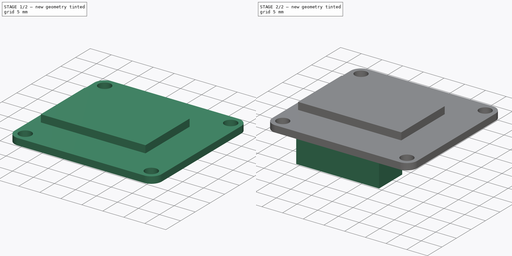
[diagram: build sequence overview — one tinted view per stage of 2, left to right]
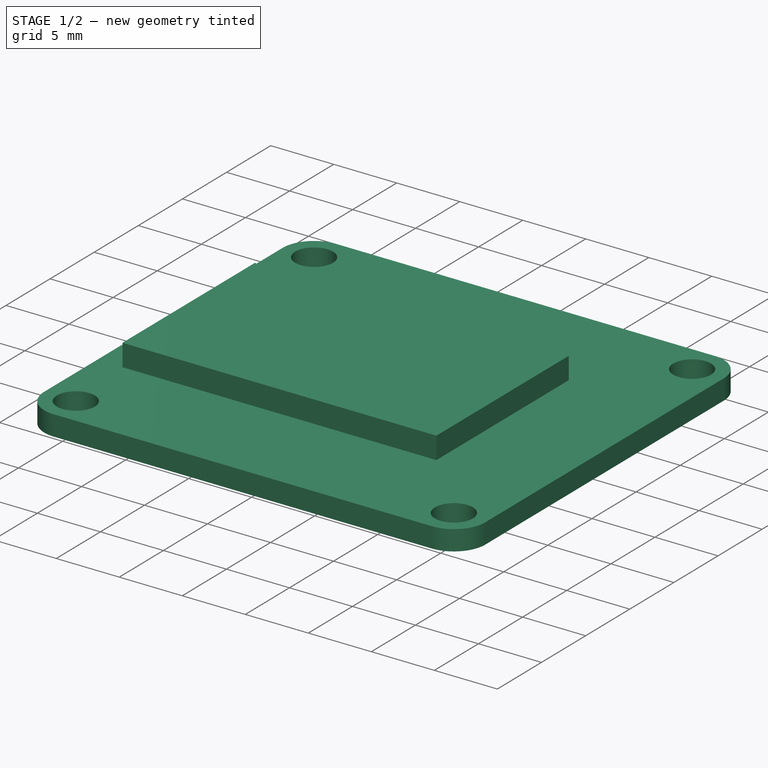
[diagram: stage 1 of 2 — iso view after this stage's code; geometry added in this stage tinted green]
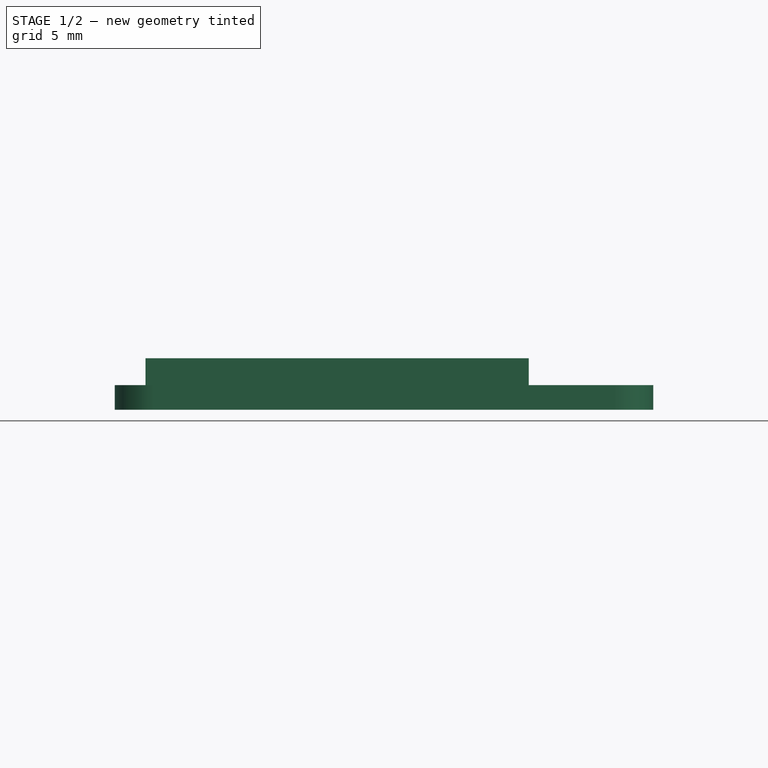
[diagram: stage 1 of 2 — front view after this stage's code; geometry added in this stage tinted green]
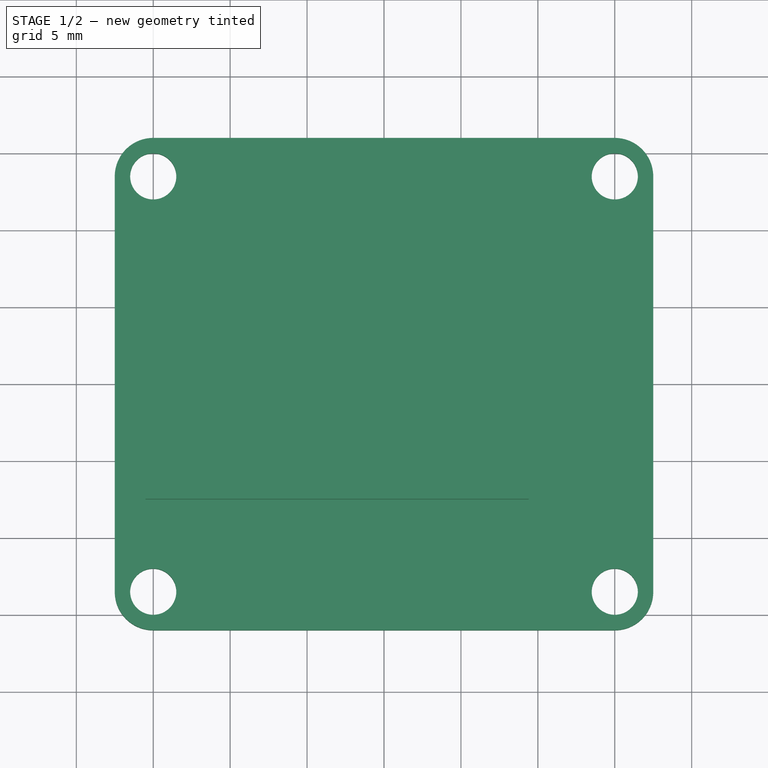
[diagram: stage 1 of 2 — top view after this stage's code; geometry added in this stage tinted green]
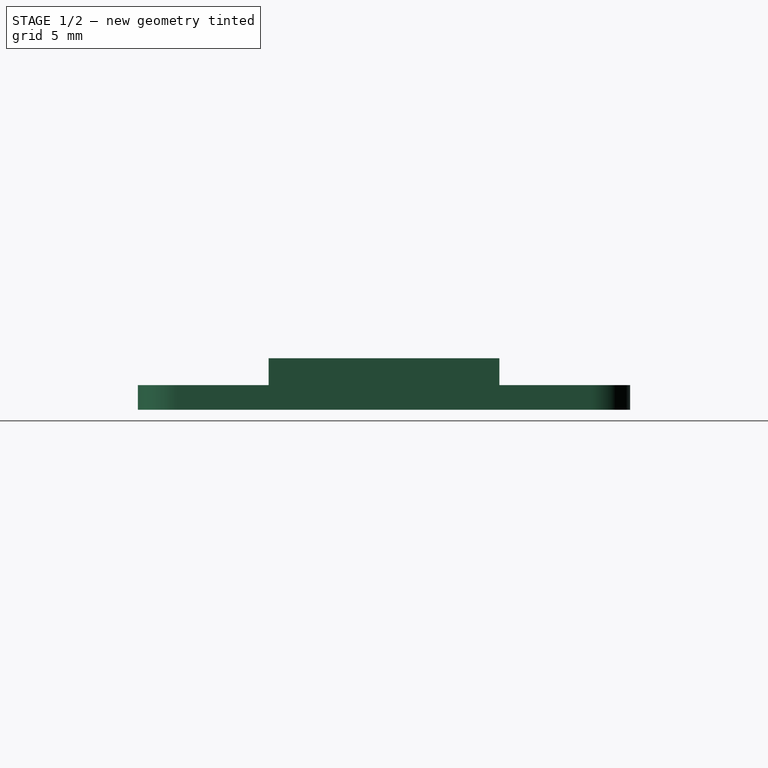
[diagram: stage 1 of 2 — right view after this stage's code; geometry added in this stage tinted green]
FCSTD DOCUMENT  (FreeCAD 0.19R24291 (Git))
Label: LCD114
License: All rights reserved
LicenseURL: http://en.wikipedia.org/wiki/All_rights_reserved
objects: Sketcher::SketchObject×3, PartDesign::Pad×3, PartDesign::CoordinateSystem×2, PartDesign::Body×1
note: 12 computed .brp shape members not serialized (recipe doc carries the construction recipe); baked Part::Feature solids carry a one-line shape summary decoded from their .brp
EXTERNAL_REF file=data.FCStd obj=Spreadsheet

FEATURE [PartDesign::CoordinateSystem] LCS_0
  AttacherType = Attacher::AttachEngine3D
  MapMode = 2
  Support = -> [X_Axis]
FEATURE [Sketcher::SketchObject] Sketch  label="Sketch_PCB"
  FullyConstrained = true
  MapMode = 5
  Support = -> [XY_Plane]
  expr: Constraints[44] = data#<<data>>.LCDLength
  expr: Constraints[43] = data#<<data>>.LCDWidth
  expr: Constraints[42] = data#<<data>>.LCDMountOffset
  sketch-geometry (16):
    g0: ArcOfCircle CenterX=-15 CenterY=13.5 CenterZ=0 NormalX=0 NormalY=0 NormalZ=1 AngleXU=0 Radius=2.5 StartAngle=1.5708 EndAngle=3.14159
    g1: ArcOfCircle CenterX=15 CenterY=13.5 CenterZ=0 NormalX=0 NormalY=0 NormalZ=1 AngleXU=0 Radius=2.5 StartAngle=0 EndAngle=1.5708
    g2: ArcOfCircle CenterX=15 CenterY=-13.5 CenterZ=0 NormalX=0 NormalY=0 NormalZ=1 AngleXU=0 Radius=2.5 StartAngle=4.71239 EndAngle=6.28319
    g3: ArcOfCircle CenterX=-15 CenterY=-13.5 CenterZ=0 NormalX=0 NormalY=0 NormalZ=1 AngleXU=0 Radius=2.5 StartAngle=3.14159 EndAngle=4.71239
    g4: LineSegment StartX=-17.5 StartY=13.5 StartZ=0 EndX=-17.5 EndY=-13.5 EndZ=0
    g5: LineSegment StartX=17.5 StartY=13.5 StartZ=0 EndX=17.5 EndY=-13.5 EndZ=0
    g6: LineSegment StartX=-15 StartY=16 StartZ=0 EndX=15 EndY=16 EndZ=0
    g7: LineSegment StartX=-15 StartY=-16 StartZ=0 EndX=15 EndY=-16 EndZ=0
    g8: LineSegment StartX=-17.5 StartY=13.5 StartZ=0 EndX=-17.5 EndY=16 EndZ=0
    g9: LineSegment StartX=-15 StartY=16 StartZ=0 EndX=-17.5 EndY=16 EndZ=0
    g10: LineSegment StartX=17.5 StartY=-13.5 StartZ=0 EndX=17.5 EndY=-16 EndZ=0
    g11: LineSegment StartX=15 StartY=-16 StartZ=0 EndX=17.5 EndY=-16 EndZ=0
    g12: Circle CenterX=-15 CenterY=13.5 CenterZ=0 NormalX=0 NormalY=0 NormalZ=1 AngleXU=0 Radius=1.5
    g13: Circle CenterX=15 CenterY=13.5 CenterZ=0 NormalX=0 NormalY=0 NormalZ=1 AngleXU=0 Radius=1.5
    g14: Circle CenterX=15 CenterY=-13.5 CenterZ=0 NormalX=0 NormalY=0 NormalZ=1 AngleXU=0 Radius=1.5
    g15: Circle CenterX=-15 CenterY=-13.5 CenterZ=0 NormalX=0 NormalY=0 NormalZ=1 AngleXU=0 Radius=1.5
  constraints (45):
    c: Vertical(g0,g0)
    c: Vertical(g3,g3)
    c: Vertical(g1,g1)
    c: Vertical(g2,g2)
    c: Horizontal(g0,g0)
    c: Horizontal(g1,g1)
    c: Horizontal(g2,g2)
    c: Horizontal(g3,g3)
    c: Equal(g0,g1)
    c: Equal(g0,g2)
    c: Equal(g0,g3)
    c: Coincident(g4,g0)
    c: Coincident(g5,g1)
    c: Coincident(g6,g0)
    c: Coincident(g7,g3)
    c: Coincident(g8,g0)
    c: Vertical(g8)
    c: Coincident(g9,g0)
    c: Horizontal(g9)
    c: Coincident(g9,g8)
    c: Coincident(g10,g2)
    c: Vertical(g10)
    c: Coincident(g11,g2)
    c: Horizontal(g11)
    c: Coincident(g10,g11)
    c: Coincident(g4,g3)
    c: Coincident(g7,g2)
    c: Coincident(g6,g1)
    c: Coincident(g5,g2)
    c: Horizontal(g6)
    c: Horizontal(g7)
    c: Vertical(g4)
    c: Vertical(g5)
    c: Symmetric(g8,g10,g-1)
    c: Coincident(g12,g0)
    c: Coincident(g13,g1)
    c: Coincident(g14,g2)
    c: Coincident(g15,g3)
    c: Equal(g12,g13)
    c: Equal(g13,g14)
    c: Equal(g14,g15)
    c: Diameter(g12) = 3
    c: Radius(g1) = 2.5
    c: DistanceX(g3,g2) = 35
    c: DistanceY(g3,g0) = 32
FEATURE [PartDesign::Pad] Pad  label="Pad_PCB"
  Direction = (1,1,1)
  Length = 1.6
  Length2 = 100
  Profile = -> Sketch
  Type = 0
  expr: Length = data#<<data>>.LCDPCBThickness
FEATURE [Sketcher::SketchObject] Sketch001  label="Sketch_glass"
  AttachmentOffset = pos=(0,0,1.6) rot=(0,0,1;0rad)
  FullyConstrained = true
  MapMode = 5
  Placement = pos=(0,0,1.6) rot=(0,0,1;0rad)
  Support = -> [XY_Plane]
  expr: .AttachmentOffset.Base.z = data#<<data>>.LCDPCBThickness
  sketch-geometry (7):
    g0: LineSegment StartX=-15.5 StartY=7.5 StartZ=0 EndX=9.41 EndY=7.5 EndZ=0
    g1: LineSegment StartX=9.41 StartY=-7.5 StartZ=0 EndX=-15.5 EndY=-7.5 EndZ=0
    g2: LineSegment StartX=-15.5 StartY=-7.5 StartZ=0 EndX=-15.5 EndY=7.5 EndZ=0
    g3: LineSegment StartX=9.41 StartY=7.5 StartZ=0 EndX=15.5 EndY=7.5 EndZ=0
    g4: LineSegment StartX=15.5 StartY=7.5 StartZ=0 EndX=15.5 EndY=-7.5 EndZ=0
    g5: LineSegment StartX=15.5 StartY=-7.5 StartZ=0 EndX=9.41 EndY=-7.5 EndZ=0
    g6: LineSegment StartX=9.41 StartY=7.5 StartZ=0 EndX=9.41 EndY=-7.5 EndZ=0
  constraints (19):
    c: Coincident(g1,g2)
    c: Coincident(g2,g0)
    c: Horizontal(g0)
    c: Horizontal(g1)
    c: Vertical(g2)
    c: DistanceY(g2,g2) = 15
    c: DistanceX(g1,g1) = 24.91
    c: Coincident(g3,g4)
    c: Coincident(g4,g5)
    c: Horizontal(g3)
    c: Horizontal(g5)
    c: Vertical(g4)
    c: Coincident(g3,g0)
    c: DistanceX(g1,g4) = 31
    c: Symmetric(g0,g4,g-1)
    c: Coincident(g6,g0)
    c: Coincident(g6,g1)
    c: Vertical(g6)
    c: Coincident(g5,g1)
FEATURE [PartDesign::Pad] Pad001  label="Pad_glass"
  BaseFeature = -> Pad
  Direction = (1,1,1)
  Length = 1.75
  Length2 = 100
  Profile = -> Sketch001
  Type = 0
  expr: Length = data#<<data>>.LCDGlassThickness
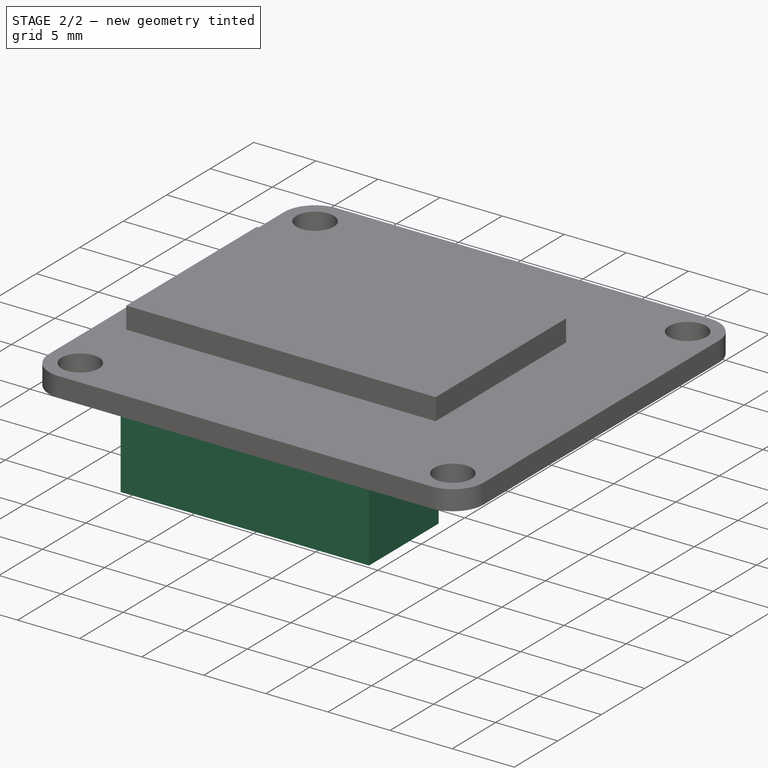
[diagram: stage 2 of 2 — iso view after this stage's code; geometry added in this stage tinted green]
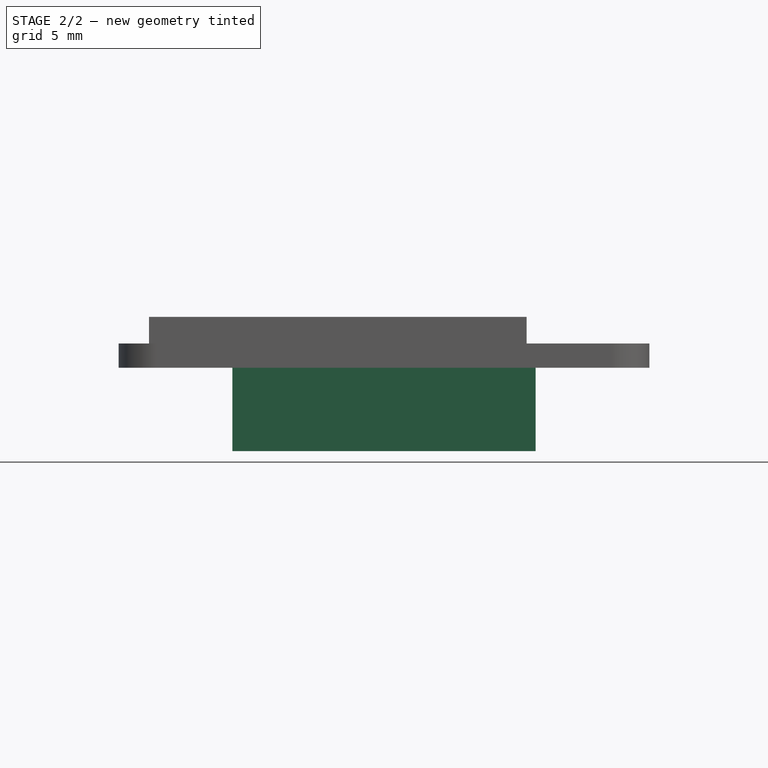
[diagram: stage 2 of 2 — front view after this stage's code; geometry added in this stage tinted green]
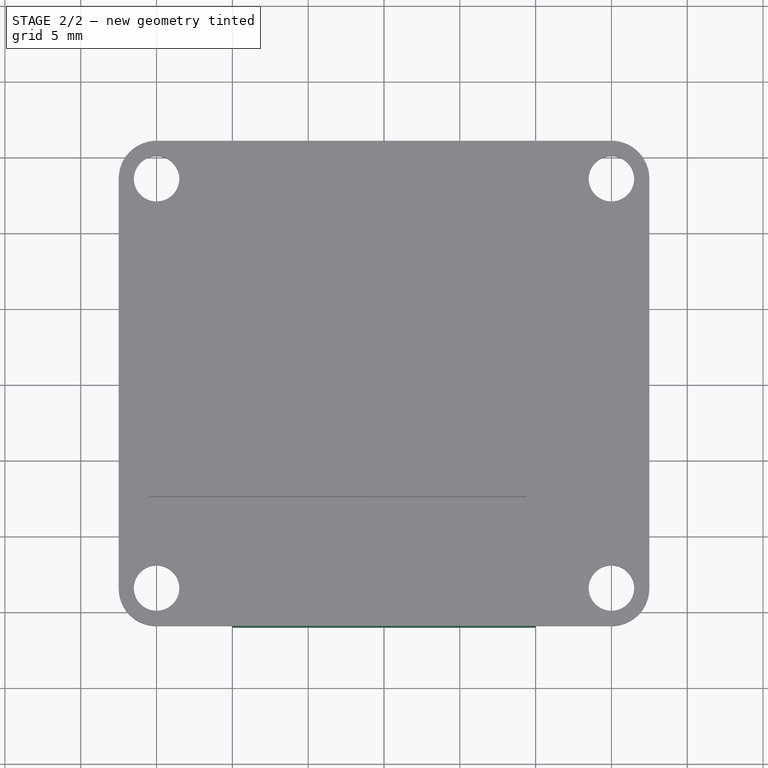
[diagram: stage 2 of 2 — top view after this stage's code; geometry added in this stage tinted green]
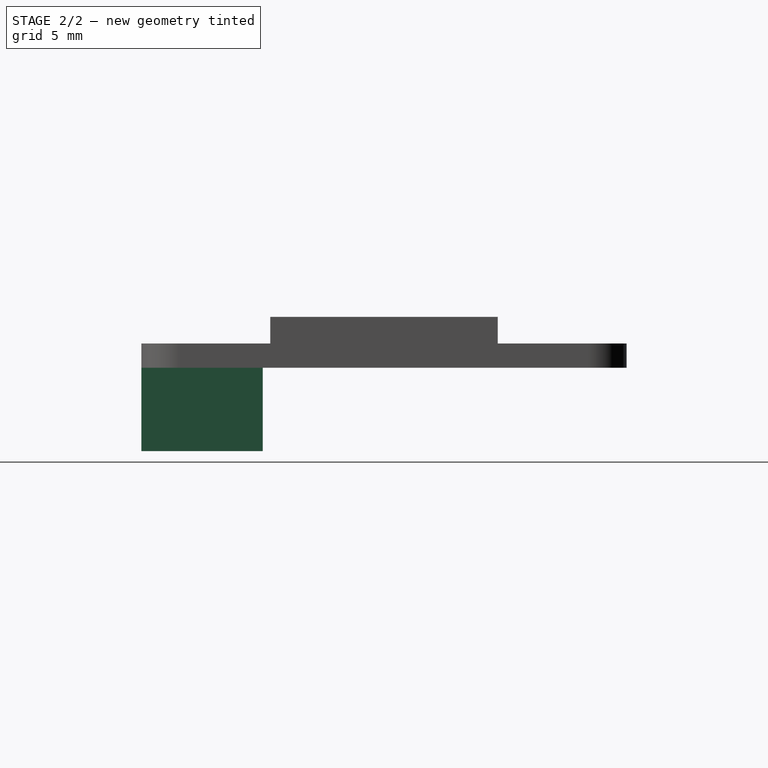
[diagram: stage 2 of 2 — right view after this stage's code; geometry added in this stage tinted green]
FEATURE [Sketcher::SketchObject] Sketch002  label="Sketch_JST_PH_8"
  FullyConstrained = true
  MapMode = 5
  Support = -> [XY_Plane]
  sketch-geometry (9):
    g0: LineSegment StartX=-17.5 StartY=16 StartZ=0 EndX=17.5 EndY=16 EndZ=0
    g1: LineSegment StartX=17.5 StartY=16 StartZ=0 EndX=17.5 EndY=-16 EndZ=0
    g2: LineSegment StartX=17.5 StartY=-16 StartZ=0 EndX=-17.5 EndY=-16 EndZ=0
    g3: LineSegment StartX=-17.5 StartY=-16 StartZ=0 EndX=-17.5 EndY=16 EndZ=0
    g4: LineSegment StartX=-10 StartY=-8 StartZ=0 EndX=10 EndY=-8 EndZ=0
    g5: LineSegment StartX=10 StartY=-8 StartZ=0 EndX=10 EndY=-16 EndZ=0
    g6: LineSegment StartX=10 StartY=-16 StartZ=0 EndX=-10 EndY=-16 EndZ=0
    g7: LineSegment StartX=-10 StartY=-16 StartZ=0 EndX=-10 EndY=-8 EndZ=0
    g8: GeomPoint X=-1e-16 Y=-16 Z=0
  constraints (23):
    c: Coincident(g0,g1)
    c: Coincident(g1,g2)
    c: Coincident(g2,g3)
    c: Coincident(g3,g0)
    c: Horizontal(g0)
    c: Horizontal(g2)
    c: Vertical(g1)
    c: Vertical(g3)
    c: Symmetric(g0,g1,g-1)
    c: DistanceY(g3,g3) = 32
    c: DistanceX(g0,g0) = 35
    c: Coincident(g4,g5)
    c: Coincident(g5,g6)
    c: Coincident(g6,g7)
    c: Coincident(g7,g4)
    c: Horizontal(g4)
    c: Horizontal(g6)
    c: Vertical(g5)
    c: Vertical(g7)
    c: Symmetric(g2,g1,g8)
    c: DistanceX(g4,g4) = 20
    c: Symmetric(g6,g5,g8)
    c: DistanceY(g7,g7) = 8
FEATURE [PartDesign::Pad] Pad002
  BaseFeature = -> Pad001
  Direction = (1,1,1)
  Length = 5.5
  Length2 = 100
  Profile = -> Sketch002
  Reversed = true
  Type = 0
FEATURE [PartDesign::CoordinateSystem] LCS_mount
  AttacherType = Attacher::AttachEngine3D
  MapMode = 11
  Placement = pos=(-15,-13.5,0) rot=(0,0,1;1.5708rad)
  Support = -> [Pad002]
FEATURE [PartDesign::Body] Body_lcd1_14  label="Body_LCD114"
  Group = -> [LCS_0,Sketch,Pad,Sketch001,Pad001,Sketch002,Pad002,LCS_mount]
  Origin = -> Origin
  Tip = -> Pad002
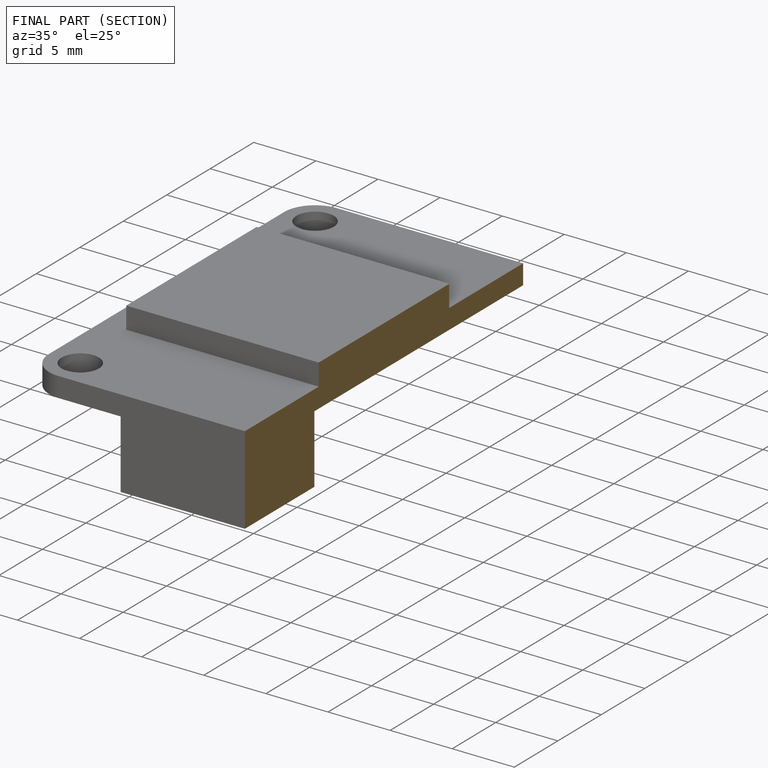
[diagram: finished part — half-section view (interior)]
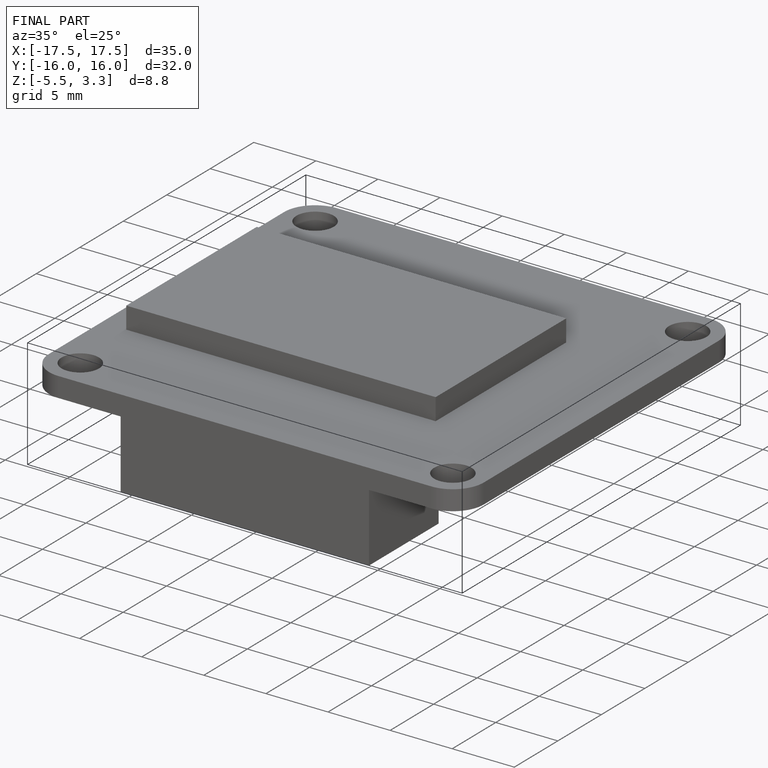
[diagram: finished part — iso view with bounding-box wireframe]
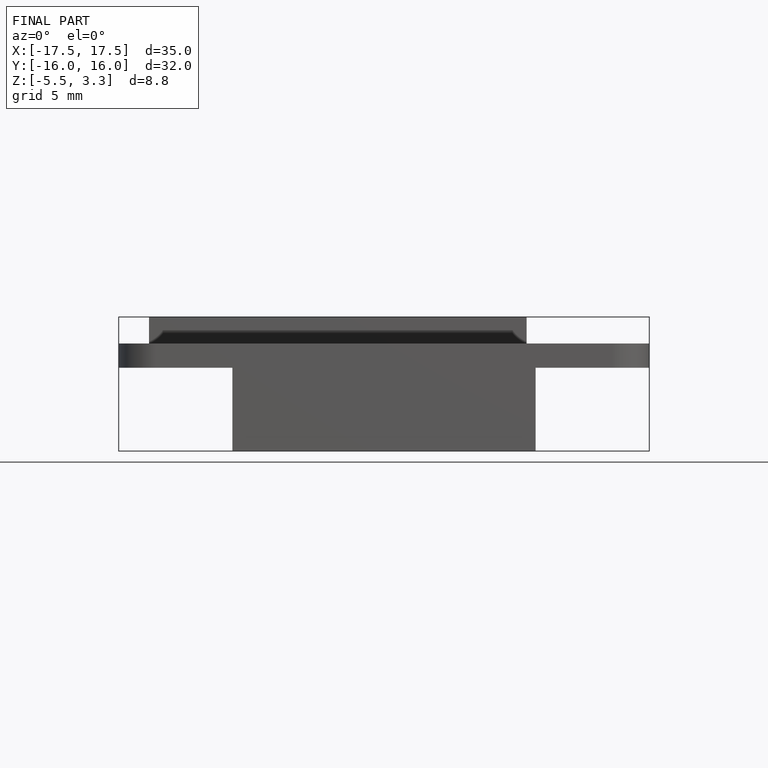
[diagram: finished part — front view with bounding-box wireframe]
